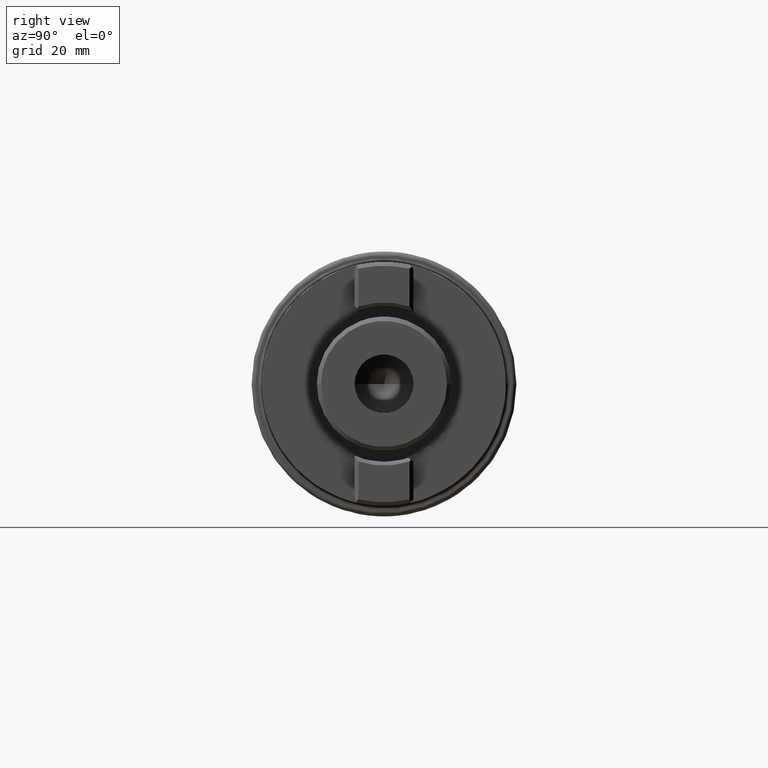
[diagram: clean part render]
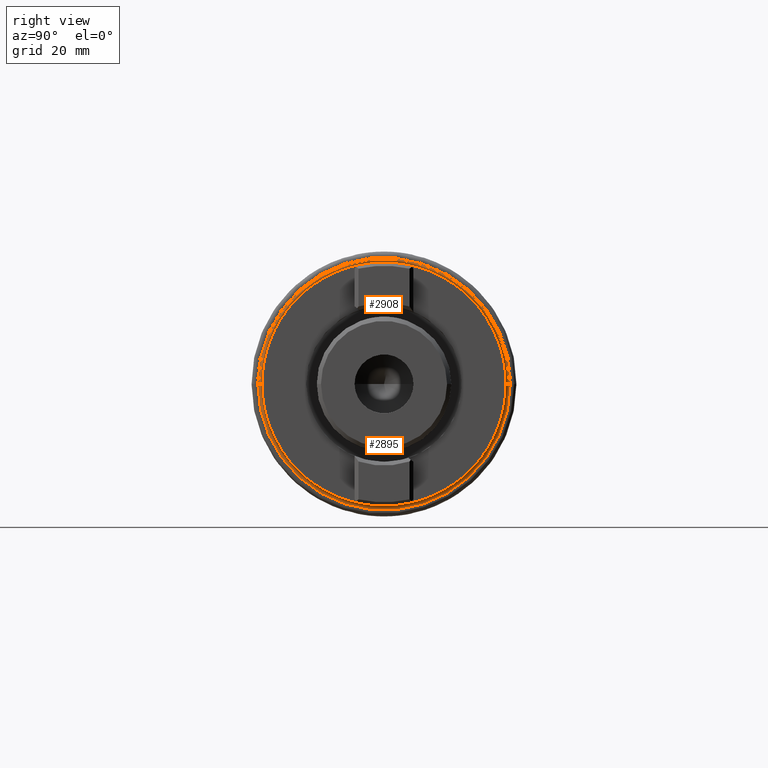
[diagram: same view with one multi-face feature highlighted, each face labeled with its STEP entity id]
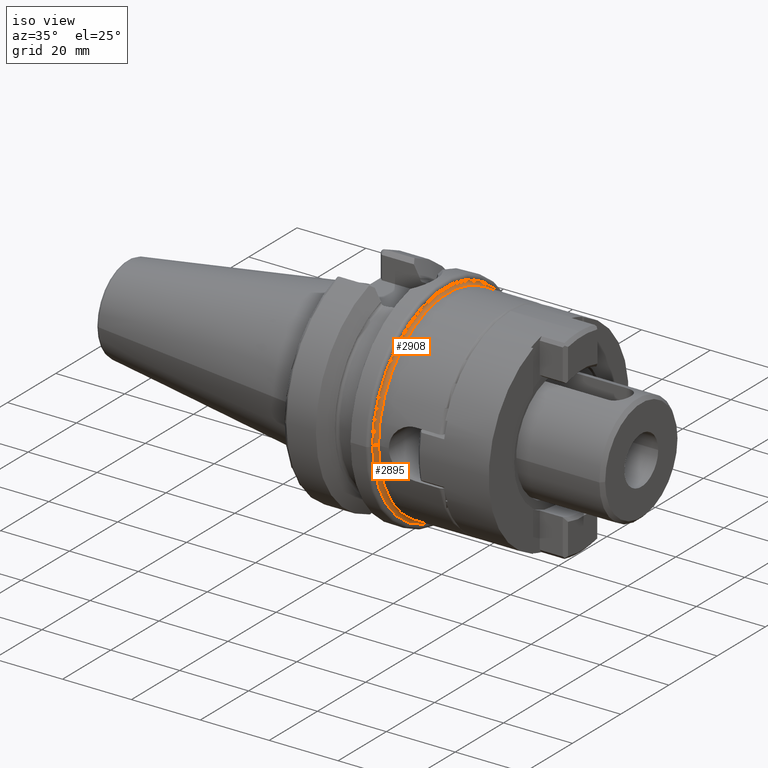
[diagram: same view with one multi-face feature highlighted, each face labeled with its STEP entity id]
A machine part, right view. The highlighted faces form ONE feature: a constant-radius fillet chain: 2 tangent blend faces with common blend radius 1 mm. The faces share edges in the B-rep.
A second angle (iso view) of the same feature is appended — it is thin or edge-on in the first view.
Their STEP definitions:
[1] entity #2895 (Torus):
#836=CARTESIAN_POINT('',(2.7E1,0.E0,0.E0));
#837=DIRECTION('',(1.E0,0.E0,0.E0));
#838=DIRECTION('',(0.E0,-1.E0,0.E0));
#839=AXIS2_PLACEMENT_3D('',#836,#837,#838);
#846=CARTESIAN_POINT('',(2.8E1,-3.E1,0.E0));
#847=DIRECTION('',(0.E0,0.E0,-1.E0));
#848=DIRECTION('',(-1.E0,3.197442310920E-14,0.E0));
#849=AXIS2_PLACEMENT_3D('',#846,#847,#848);
#851=CARTESIAN_POINT('',(2.8E1,3.E1,0.E0));
#852=DIRECTION('',(0.E0,0.E0,1.E0));
#853=DIRECTION('',(-1.E0,-3.197442310920E-14,0.E0));
#854=AXIS2_PLACEMENT_3D('',#851,#852,#853);
#1246=CARTESIAN_POINT('',(2.8E1,0.E0,0.E0));
#1247=DIRECTION('',(1.E0,0.E0,0.E0));
#1248=DIRECTION('',(0.E0,-1.E0,0.E0));
#1249=AXIS2_PLACEMENT_3D('',#1246,#1247,#1248);
#1702=CARTESIAN_POINT('',(2.7E1,-3.E1,0.E0));
#1703=CARTESIAN_POINT('',(2.7E1,3.E1,0.E0));
#1704=VERTEX_POINT('',#1702);
#1705=VERTEX_POINT('',#1703);
#1706=CARTESIAN_POINT('',(2.8E1,-2.9E1,0.E0));
#1707=CARTESIAN_POINT('',(2.8E1,2.9E1,0.E0));
#1708=VERTEX_POINT('',#1706);
#1709=VERTEX_POINT('',#1707);
#2881=CARTESIAN_POINT('',(2.8E1,0.E0,0.E0));
#2882=DIRECTION('',(1.E0,0.E0,0.E0));
#2883=DIRECTION('',(0.E0,-9.999859426026E-1,5.302319981840E-3));
#2884=AXIS2_PLACEMENT_3D('',#2881,#2882,#2883);
#2885=TOROIDAL_SURFACE('',#2884,3.E1,1.E0);
#2886=ORIENTED_EDGE('',*,*,#2874,.F.);
#2888=ORIENTED_EDGE('',*,*,#2887,.T.);
#2890=ORIENTED_EDGE('',*,*,#2889,.T.);
#2892=ORIENTED_EDGE('',*,*,#2891,.F.);
#2893=EDGE_LOOP('',(#2886,#2888,#2890,#2892));
#2894=FACE_OUTER_BOUND('',#2893,.F.);
#2895=ADVANCED_FACE('',(#2894),#2885,.F.);
#840=CIRCLE('',#839,3.E1);
#850=CIRCLE('',#849,1.E0);
#855=CIRCLE('',#854,1.E0);
#1250=CIRCLE('',#1249,2.9E1);
#2874=EDGE_CURVE('',#1704,#1705,#840,.T.);
#2887=EDGE_CURVE('',#1704,#1708,#850,.T.);
#2889=EDGE_CURVE('',#1708,#1709,#1250,.T.);
#2891=EDGE_CURVE('',#1705,#1709,#855,.T.);
[2] entity #2908 (Torus):
#841=CARTESIAN_POINT('',(2.7E1,0.E0,0.E0));
#842=DIRECTION('',(1.E0,0.E0,0.E0));
#843=DIRECTION('',(0.E0,1.E0,0.E0));
#844=AXIS2_PLACEMENT_3D('',#841,#842,#843);
#846=CARTESIAN_POINT('',(2.8E1,-3.E1,0.E0));
#847=DIRECTION('',(0.E0,0.E0,-1.E0));
#848=DIRECTION('',(-1.E0,3.197442310920E-14,0.E0));
#849=AXIS2_PLACEMENT_3D('',#846,#847,#848);
#851=CARTESIAN_POINT('',(2.8E1,3.E1,0.E0));
#852=DIRECTION('',(0.E0,0.E0,1.E0));
#853=DIRECTION('',(-1.E0,-3.197442310920E-14,0.E0));
#854=AXIS2_PLACEMENT_3D('',#851,#852,#853);
#874=CARTESIAN_POINT('',(2.8E1,0.E0,0.E0));
#875=DIRECTION('',(1.E0,0.E0,0.E0));
#876=DIRECTION('',(0.E0,1.E0,0.E0));
#877=AXIS2_PLACEMENT_3D('',#874,#875,#876);
#1702=CARTESIAN_POINT('',(2.7E1,-3.E1,0.E0));
#1703=CARTESIAN_POINT('',(2.7E1,3.E1,0.E0));
#1704=VERTEX_POINT('',#1702);
#1705=VERTEX_POINT('',#1703);
#1706=CARTESIAN_POINT('',(2.8E1,-2.9E1,0.E0));
#1707=CARTESIAN_POINT('',(2.8E1,2.9E1,0.E0));
#1708=VERTEX_POINT('',#1706);
#1709=VERTEX_POINT('',#1707);
#2896=CARTESIAN_POINT('',(2.8E1,0.E0,0.E0));
#2897=DIRECTION('',(1.E0,0.E0,0.E0));
#2898=DIRECTION('',(0.E0,9.999859426026E-1,-5.302319981840E-3));
#2899=AXIS2_PLACEMENT_3D('',#2896,#2897,#2898);
#2900=TOROIDAL_SURFACE('',#2899,3.E1,1.E0);
#2901=ORIENTED_EDGE('',*,*,#2876,.F.);
#2902=ORIENTED_EDGE('',*,*,#2891,.T.);
#2904=ORIENTED_EDGE('',*,*,#2903,.T.);
#2905=ORIENTED_EDGE('',*,*,#2887,.F.);
#2906=EDGE_LOOP('',(#2901,#2902,#2904,#2905));
#2907=FACE_OUTER_BOUND('',#2906,.F.);
#2908=ADVANCED_FACE('',(#2907),#2900,.F.);
#845=CIRCLE('',#844,3.E1);
#850=CIRCLE('',#849,1.E0);
#855=CIRCLE('',#854,1.E0);
#878=CIRCLE('',#877,2.9E1);
#2876=EDGE_CURVE('',#1705,#1704,#845,.T.);
#2887=EDGE_CURVE('',#1704,#1708,#850,.T.);
#2891=EDGE_CURVE('',#1705,#1709,#855,.T.);
#2903=EDGE_CURVE('',#1709,#1708,#878,.T.);